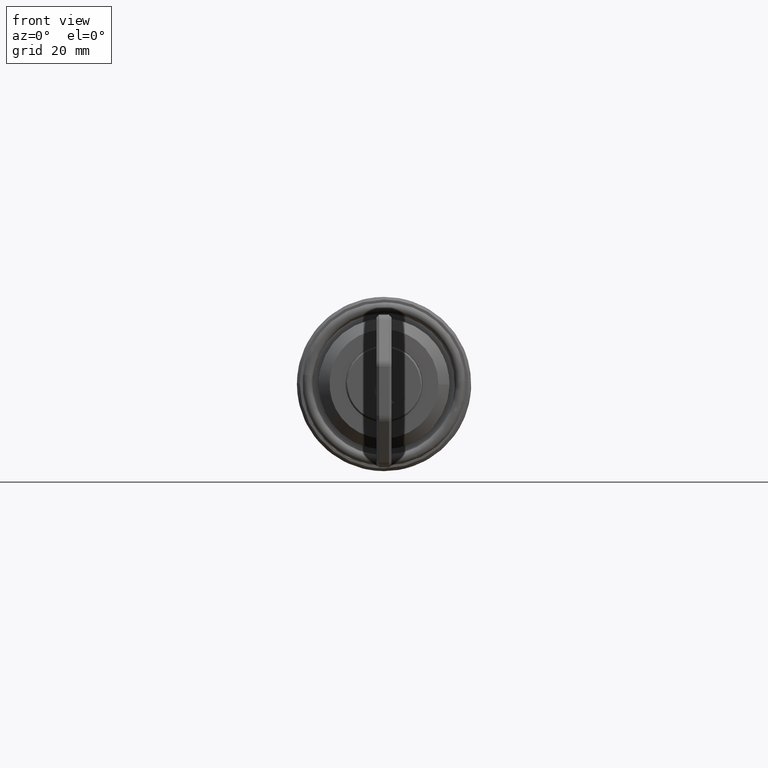
[diagram: clean part render]
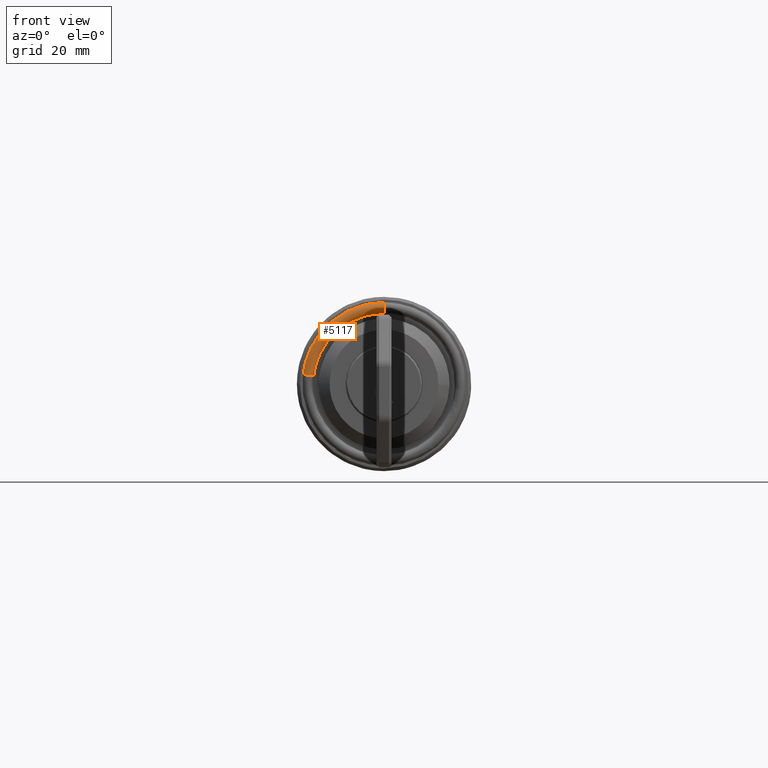
[diagram: same view with one face highlighted and labeled with its STEP entity id]
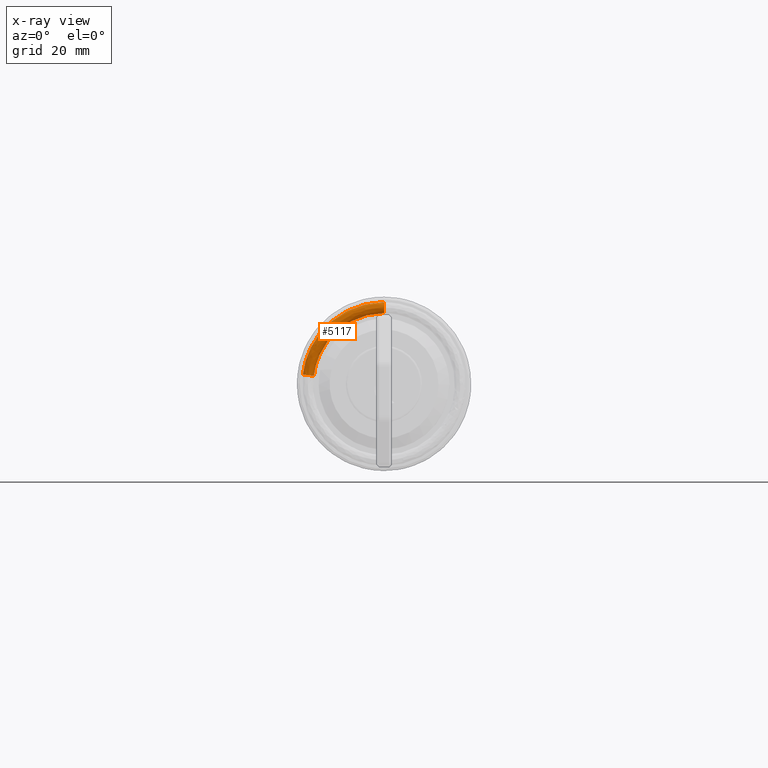
[diagram: x-ray of the same camera — body ghosted, the highlighted face saturated]
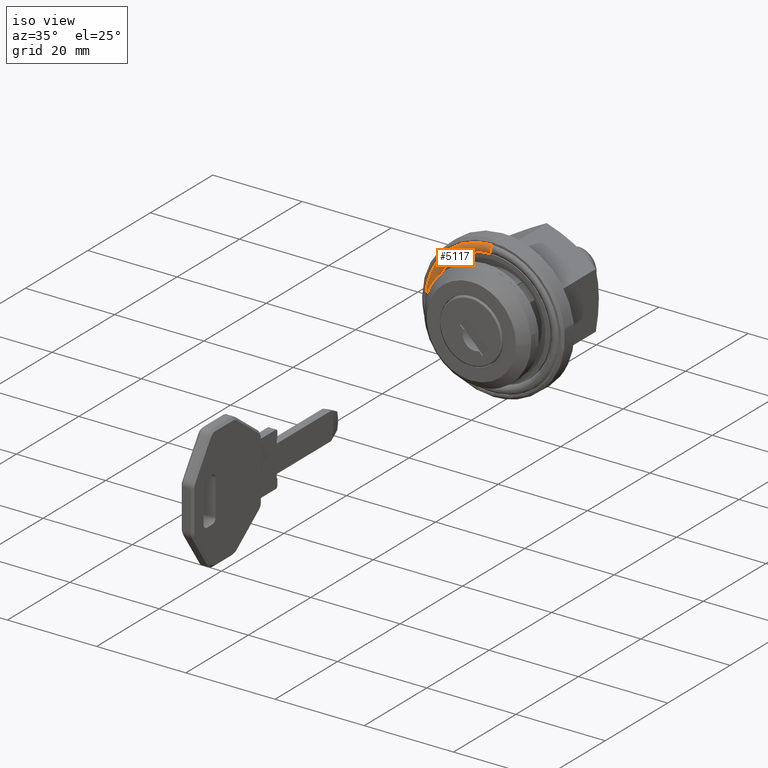
[diagram: same view with one face highlighted and labeled with its STEP entity id]
A machine part, front view. The second image highlights one B-rep face of the part: STEP entity #5117.
The next image is the same camera in x-ray: the body ghosted, the highlighted face saturated — about 0% of this face is hidden behind the body in this view.
A second angle (iso view) of the same face is appended — the face is thin or edge-on in the first view.
In plain terms, the highlighted face is a freeform B-spline surface patch.
Its self-contained STEP definition (entity closure, byte-faithful):
#3200=CARTESIAN_POINT('',(7.099999999966480,0.0,15.0));
#3201=VERTEX_POINT('',#3200);
#3291=CARTESIAN_POINT('',(7.099999999950715,14.899674581772350,1.731963439939431));
#3292=VERTEX_POINT('',#3291);
#3308=CARTESIAN_POINT('',(7.099999999966480,0.0,15.0));
#3309=CARTESIAN_POINT('',(7.099999999990900,13.357375512344012,15.0));
#3310=CARTESIAN_POINT('',(7.099999999950715,14.899674581772349,1.731963439939431));
#3318=(BOUNDED_CURVE()B_SPLINE_CURVE(2,(#3308,#3309,#3310),.UNSPECIFIED.,.F.,.U.)B_SPLINE_CURVE_WITH_KNOTS((3,3),(0.0,0.229999999999244),.UNSPECIFIED.)CURVE()GEOMETRIC_REPRESENTATION_ITEM()RATIONAL_B_SPLINE_CURVE((1.0,0.730538238692510,0.956886118189171))REPRESENTATION_ITEM(''));
#3319=EDGE_CURVE('',#3201,#3292,#3318,.T.);
#3405=CARTESIAN_POINT('',(7.099999999573511,0.0,13.0));
#3406=VERTEX_POINT('',#3405);
#3420=CARTESIAN_POINT('',(7.099999999629861,12.913051304194090,1.501034981354945));
#3421=VERTEX_POINT('',#3420);
#3422=CARTESIAN_POINT('',(7.099999999573511,0.0,13.0));
#3423=CARTESIAN_POINT('',(7.099999999990899,11.576392110564370,13.0));
#3424=CARTESIAN_POINT('',(7.099999999629861,12.913051304194088,1.501034981354945));
#3432=(BOUNDED_CURVE()B_SPLINE_CURVE(2,(#3422,#3423,#3424),.UNSPECIFIED.,.F.,.U.)B_SPLINE_CURVE_WITH_KNOTS((3,3),(0.0,0.229999999997302),.UNSPECIFIED.)CURVE()GEOMETRIC_REPRESENTATION_ITEM()RATIONAL_B_SPLINE_CURVE((1.0,0.730538238694785,0.956886118185349))REPRESENTATION_ITEM(''));
#3433=EDGE_CURVE('',#3406,#3421,#3432,.T.);
#5051=CARTESIAN_POINT('',(7.099999999966480,0.0,14.999999999999995));
#5052=CARTESIAN_POINT('',(6.093696992465815,0.0,14.999999999950850));
#5053=CARTESIAN_POINT('',(6.100019739134763,0.0,13.993716856034441));
#5054=CARTESIAN_POINT('',(6.106263528444074,0.0,13.000000000829546));
#5055=CARTESIAN_POINT('',(7.099999999573512,0.0,12.999999999999995));
#5063=(BOUNDED_CURVE()B_SPLINE_CURVE(2,(#5051,#5052,#5053,#5054,#5055),.UNSPECIFIED.,.F.,.U.)B_SPLINE_CURVE_WITH_KNOTS((3,2,3),(-3.782392940613533,-2.0,-0.232800893063039),.UNSPECIFIED.)CURVE()GEOMETRIC_REPRESENTATION_ITEM()RATIONAL_B_SPLINE_CURVE((0.930341413791194,0.679888205809109,1.0,0.682616967379031,0.926112946562783))REPRESENTATION_ITEM(''));
#5064=EDGE_CURVE('',#3201,#3406,#5063,.T.);
#5070=CARTESIAN_POINT('',(7.099999999950715,14.899674581772357,1.731963439939431));
#5071=CARTESIAN_POINT('',(6.093696992466014,14.899674581695884,1.731963439896770));
#5072=CARTESIAN_POINT('',(6.100019739134762,13.900121822961983,1.615773732203301));
#5073=CARTESIAN_POINT('',(6.106263528444776,12.913051304918811,1.501034981334813));
#5074=CARTESIAN_POINT('',(7.099999999629861,12.913051304194088,1.501034981354945));
#5082=(BOUNDED_CURVE()B_SPLINE_CURVE(2,(#5070,#5071,#5072,#5073,#5074),.UNSPECIFIED.,.F.,.U.)B_SPLINE_CURVE_WITH_KNOTS((3,2,3),(-3.782392940575324,-2.0,-0.232800892927079),.UNSPECIFIED.)CURVE()GEOMETRIC_REPRESENTATION_ITEM()RATIONAL_B_SPLINE_CURVE((0.890230784024391,0.650575586066857,0.956886118190660,0.653186700103036,0.886184622478427))REPRESENTATION_ITEM(''));
#5083=EDGE_CURVE('',#3292,#3421,#5082,.T.);
#5088=CARTESIAN_POINT('',(7.241771206608387,0.0,14.989899451951667));
#5089=CARTESIAN_POINT('',(7.241771206608386,13.348381058193308,14.989899451951670));
#5090=CARTESIAN_POINT('',(7.241771206608387,14.889641589841716,1.730797187909928));
#5091=CARTESIAN_POINT('',(6.092726459443505,0.0,15.154463095200358));
#5092=CARTESIAN_POINT('',(6.092726459443506,13.494923616764112,15.154463095200358));
#5093=CARTESIAN_POINT('',(6.092726459443507,15.053104572001509,1.749798402152894));
#5094=CARTESIAN_POINT('',(6.100019739134763,0.0,13.993716856034441));
#5095=CARTESIAN_POINT('',(6.100019739134762,12.461288724020772,13.993716856034430));
#5096=CARTESIAN_POINT('',(6.100019739134765,13.900121822961985,1.615773732203301));
#5097=CARTESIAN_POINT('',(6.107226128987664,0.0,12.846799382165305));
#5098=CARTESIAN_POINT('',(6.107226128987663,11.439968232006903,12.846799382165301));
#5099=CARTESIAN_POINT('',(6.107226128987666,12.760875347441798,1.483345789981247));
#5100=CARTESIAN_POINT('',(7.242466948442842,0.0,13.010200440190644));
#5101=CARTESIAN_POINT('',(7.242466948442845,11.585475518084809,13.010200440190641));
#5102=CARTESIAN_POINT('',(7.242466948442845,12.923183520168159,1.502212767217371));
#5110=(BOUNDED_SURFACE()B_SPLINE_SURFACE(2,2,((#5088,#5091,#5094,#5097,#5100),(#5089,#5092,#5095,#5098,#5101),(#5090,#5093,#5096,#5099,#5102)),.UNSPECIFIED.,.F.,.F.,.U.)B_SPLINE_SURFACE_WITH_KNOTS((3,3),(3,2,3),(0.0,22.824129907717278),(0.0,1.833644897011473,3.653073328674712),.UNSPECIFIED.)GEOMETRIC_REPRESENTATION_ITEM()RATIONAL_B_SPLINE_SURFACE(((0.985814415256577,0.648045377998337,1.0,0.650774123730944,0.980618348685788),(0.720175126598353,0.473421929035153,0.730538238691624,0.475415382136489,0.716379201277604),(0.943312129071261,0.620105626164227,0.956886118190660,0.622716725075831,0.938340085100478)))REPRESENTATION_ITEM('')SURFACE());
#5111=ORIENTED_EDGE('',*,*,#3319,.T.);
#5112=ORIENTED_EDGE('',*,*,#5083,.T.);
#5113=ORIENTED_EDGE('',*,*,#3433,.F.);
#5114=ORIENTED_EDGE('',*,*,#5064,.F.);
#5115=EDGE_LOOP('',(#5111,#5112,#5113,#5114));
#5116=FACE_OUTER_BOUND('',#5115,.T.);
#5117=ADVANCED_FACE('',(#5116),#5110,.T.);